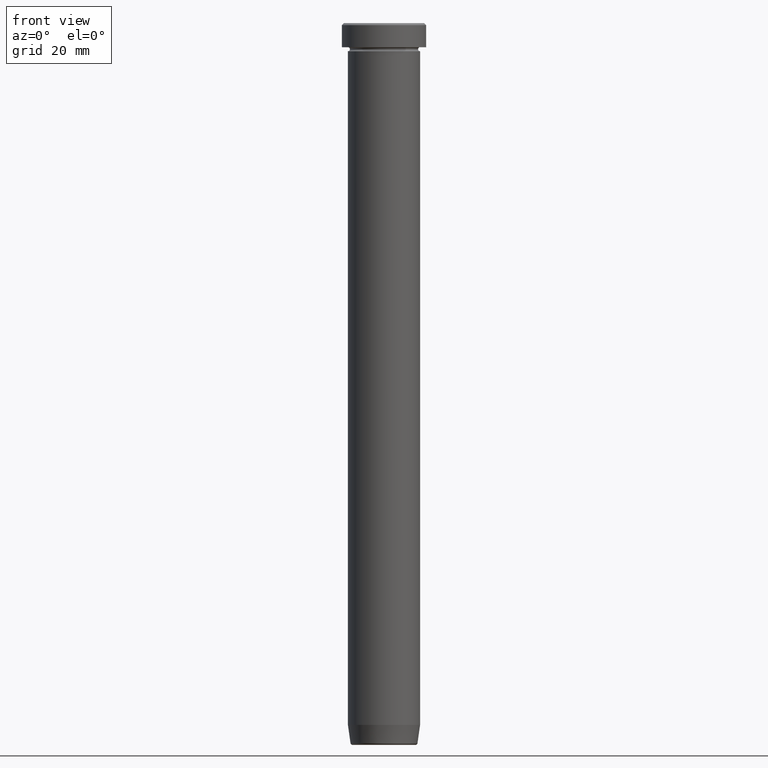
[diagram: clean part render]
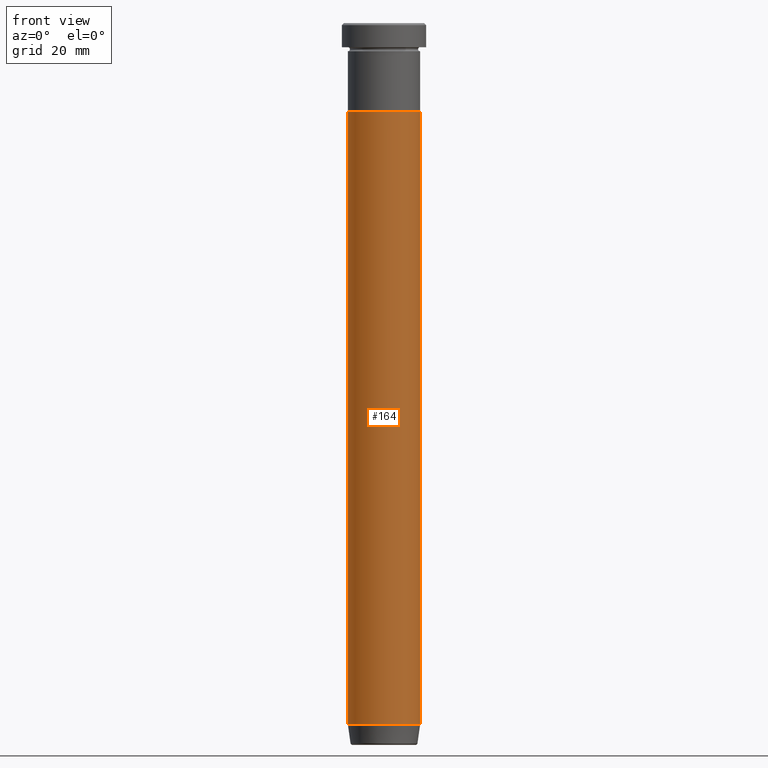
[diagram: same view with one face highlighted and labeled with its STEP entity id]
A machine part, front view. The second image highlights one B-rep face of the part: STEP entity #164.
In plain terms, the highlighted cylindrical surface (edge-blend (fillet) strip) has radius 9 mm, axis along (-0, -0, 1).
Its self-contained STEP definition (entity closure, byte-faithful):
#22 = ORIENTED_EDGE ( 'NONE', *, *, #30, .T. ) ;
#30 = EDGE_CURVE ( 'NONE', #199, #220, #85, .T. ) ;
#37 = CARTESIAN_POINT ( 'NONE',  ( 0.000000000000000000, 0.000000000000000000, -175.0000000000000000 ) ) ;
#39 = DIRECTION ( 'NONE',  ( -0.000000000000000000, -0.000000000000000000, 1.000000000000000000 ) ) ;
#42 = LINE ( 'NONE', #555, #305 ) ;
#55 = EDGE_CURVE ( 'NONE', #199, #448, #596, .T. ) ;
#85 = CIRCLE ( 'NONE', #379, 9.000000000000000000 ) ;
#89 = DIRECTION ( 'NONE',  ( -0.000000000000000000, -0.000000000000000000, 1.000000000000000000 ) ) ;
#119 = ORIENTED_EDGE ( 'NONE', *, *, #173, .F. ) ;
#132 = CYLINDRICAL_SURFACE ( 'NONE', #486, 9.000000000000000000 ) ;
#139 = EDGE_CURVE ( 'NONE', #220, #450, #42, .T. ) ;
#141 = AXIS2_PLACEMENT_3D ( 'NONE', #460, #420, #235 ) ;
#151 = EDGE_LOOP ( 'NONE', ( #481, #22, #587, #119 ) ) ;
#158 = CIRCLE ( 'NONE', #141, 9.000000000000000000 ) ;
#164 = ADVANCED_FACE ( 'NONE', ( #507 ), #132, .T. ) ;
#173 = EDGE_CURVE ( 'NONE', #448, #450, #158, .T. ) ;
#189 = CARTESIAN_POINT ( 'NONE',  ( 0.000000000000000000, 0.000000000000000000, 0.000000000000000000 ) ) ;
#199 = VERTEX_POINT ( 'NONE', #303 ) ;
#220 = VERTEX_POINT ( 'NONE', #385 ) ;
#222 = VECTOR ( 'NONE', #89, 1000.000000000000000 ) ;
#223 = CARTESIAN_POINT ( 'NONE',  ( 9.000000000000000000, 0.000000000000000000, -22.00000000000000000 ) ) ;
#225 = CARTESIAN_POINT ( 'NONE',  ( -9.000000000000000000, 1.102182119232617714E-15, -22.00000000000000000 ) ) ;
#235 = DIRECTION ( 'NONE',  ( 1.000000000000000000, 0.000000000000000000, 0.000000000000000000 ) ) ;
#240 = DIRECTION ( 'NONE',  ( 1.000000000000000000, 0.000000000000000000, 0.000000000000000000 ) ) ;
#292 = DIRECTION ( 'NONE',  ( -0.000000000000000000, -0.000000000000000000, 1.000000000000000000 ) ) ;
#303 = CARTESIAN_POINT ( 'NONE',  ( -9.000000000000000000, 1.102182119232617714E-15, -175.0000000000000000 ) ) ;
#305 = VECTOR ( 'NONE', #292, 1000.000000000000000 ) ;
#319 = DIRECTION ( 'NONE',  ( -0.000000000000000000, -0.000000000000000000, 1.000000000000000000 ) ) ;
#360 = CARTESIAN_POINT ( 'NONE',  ( -9.000000000000000000, 1.102182119232617714E-15, 0.000000000000000000 ) ) ;
#379 = AXIS2_PLACEMENT_3D ( 'NONE', #37, #319, #558 ) ;
#385 = CARTESIAN_POINT ( 'NONE',  ( 9.000000000000000000, 0.000000000000000000, -175.0000000000000000 ) ) ;
#420 = DIRECTION ( 'NONE',  ( -0.000000000000000000, -0.000000000000000000, 1.000000000000000000 ) ) ;
#448 = VERTEX_POINT ( 'NONE', #225 ) ;
#450 = VERTEX_POINT ( 'NONE', #223 ) ;
#460 = CARTESIAN_POINT ( 'NONE',  ( 0.000000000000000000, 0.000000000000000000, -22.00000000000000000 ) ) ;
#481 = ORIENTED_EDGE ( 'NONE', *, *, #55, .F. ) ;
#486 = AXIS2_PLACEMENT_3D ( 'NONE', #189, #39, #240 ) ;
#507 = FACE_OUTER_BOUND ( 'NONE', #151, .T. ) ;
#555 = CARTESIAN_POINT ( 'NONE',  ( 9.000000000000000000, 0.000000000000000000, 0.000000000000000000 ) ) ;
#558 = DIRECTION ( 'NONE',  ( 1.000000000000000000, 0.000000000000000000, 0.000000000000000000 ) ) ;
#587 = ORIENTED_EDGE ( 'NONE', *, *, #139, .T. ) ;
#596 = LINE ( 'NONE', #360, #222 ) ;